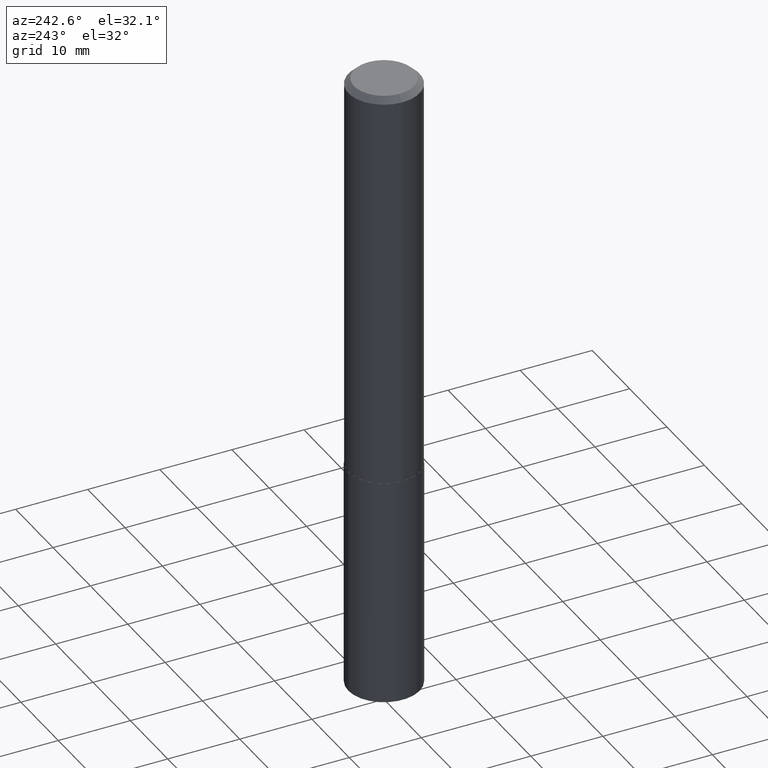
[diagram: clean part render]
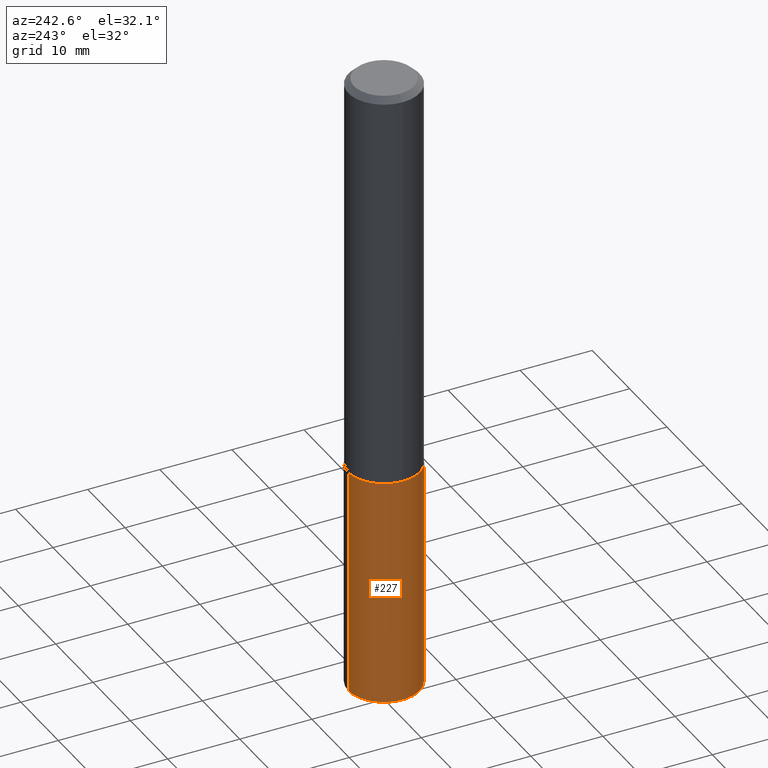
[diagram: same view with one face highlighted and labeled with its STEP entity id]
A machine part, auxiliary view. The second image highlights one B-rep face of the part: STEP entity #227.
In plain terms, the highlighted cylindrical surface (partial cylindrical patch) has radius 4.9505 mm, axis along (-0, 0, 1).
Its self-contained STEP definition (entity closure, byte-faithful):
#23 = CARTESIAN_POINT ( 'NONE',  ( 1.384847791996519796E-15, 0.1948999999999923294, -2.200800000000000090 ) ) ;
#27 = AXIS2_PLACEMENT_3D ( 'NONE', #103, #220, #78 ) ;
#28 = CARTESIAN_POINT ( 'NONE',  ( -1.360979425880999252E-15, -0.1949000000000076782, -2.200799999999999201 ) ) ;
#41 = ORIENTED_EDGE ( 'NONE', *, *, #325, .F. ) ;
#44 = VERTEX_POINT ( 'NONE', #246 ) ;
#51 = VECTOR ( 'NONE', #380, 39.37007874015748143 ) ;
#55 = DIRECTION ( 'NONE',  ( -2.445539226815718416E-29, 3.491380492492059184E-15, 1.000000000000000000 ) ) ;
#78 = DIRECTION ( 'NONE',  ( -6.982962677686266711E-15, -1.000000000000000000, 2.803332984776052637E-15 ) ) ;
#84 = DIRECTION ( 'NONE',  ( -6.982962677686266711E-15, -1.000000000000000000, 2.803332984776052637E-15 ) ) ;
#103 = CARTESIAN_POINT ( 'NONE',  ( 5.381987748652247650E-29, -7.684052130525994609E-15, -2.200799999999999645 ) ) ;
#108 = CARTESIAN_POINT ( 'NONE',  ( 8.441055792269541156E-29, -1.205133864778130519E-14, -3.451676702395174878 ) ) ;
#115 = ORIENTED_EDGE ( 'NONE', *, *, #306, .F. ) ;
#120 = VERTEX_POINT ( 'NONE', #251 ) ;
#137 = DIRECTION ( 'NONE',  ( -2.445539226815718416E-29, 3.491380492492059184E-15, 1.000000000000000000 ) ) ;
#141 = CARTESIAN_POINT ( 'NONE',  ( 1.384847791996488833E-15, 0.1948999999999923016, -2.200800000000000090 ) ) ;
#142 = CIRCLE ( 'NONE', #351, 0.1948999999999999899 ) ;
#162 = ORIENTED_EDGE ( 'NONE', *, *, #248, .T. ) ;
#164 = CYLINDRICAL_SURFACE ( 'NONE', #27, 0.1948999999999999899 ) ;
#181 = CIRCLE ( 'NONE', #310, 0.1948999999999999899 ) ;
#203 = LINE ( 'NONE', #141, #51 ) ;
#217 = CARTESIAN_POINT ( 'NONE',  ( -1.360979425880968486E-15, -0.1949000000000119803, -3.451676702395174434 ) ) ;
#219 = VERTEX_POINT ( 'NONE', #217 ) ;
#220 = DIRECTION ( 'NONE',  ( -2.445539226815718416E-29, 3.491380492492059184E-15, 1.000000000000000000 ) ) ;
#227 = ADVANCED_FACE ( 'NONE', ( #314 ), #164, .T. ) ;
#246 = CARTESIAN_POINT ( 'NONE',  ( -1.360979425880999252E-15, -0.1949000000000076782, -2.200799999999999201 ) ) ;
#248 = EDGE_CURVE ( 'NONE', #219, #44, #284, .T. ) ;
#251 = CARTESIAN_POINT ( 'NONE',  ( 1.384847791996519007E-15, 0.1948999999999878885, -3.451676702395175766 ) ) ;
#260 = DIRECTION ( 'NONE',  ( -6.982962677686266711E-15, -1.000000000000000000, 2.803332984776052637E-15 ) ) ;
#283 = EDGE_CURVE ( 'NONE', #120, #219, #181, .T. ) ;
#284 = LINE ( 'NONE', #28, #315 ) ;
#286 = DIRECTION ( 'NONE',  ( -2.445539226815718416E-29, 3.491380492492059184E-15, 1.000000000000000000 ) ) ;
#303 = EDGE_LOOP ( 'NONE', ( #41, #359, #162, #115 ) ) ;
#306 = EDGE_CURVE ( 'NONE', #331, #44, #142, .T. ) ;
#310 = AXIS2_PLACEMENT_3D ( 'NONE', #108, #286, #260 ) ;
#314 = FACE_OUTER_BOUND ( 'NONE', #303, .T. ) ;
#315 = VECTOR ( 'NONE', #137, 39.37007874015748143 ) ;
#319 = CARTESIAN_POINT ( 'NONE',  ( 5.381987748652247650E-29, -7.684052130525994609E-15, -2.200799999999999645 ) ) ;
#325 = EDGE_CURVE ( 'NONE', #120, #331, #203, .T. ) ;
#331 = VERTEX_POINT ( 'NONE', #23 ) ;
#351 = AXIS2_PLACEMENT_3D ( 'NONE', #319, #55, #84 ) ;
#359 = ORIENTED_EDGE ( 'NONE', *, *, #283, .T. ) ;
#380 = DIRECTION ( 'NONE',  ( -2.445539226815718416E-29, 3.491380492492059184E-15, 1.000000000000000000 ) ) ;